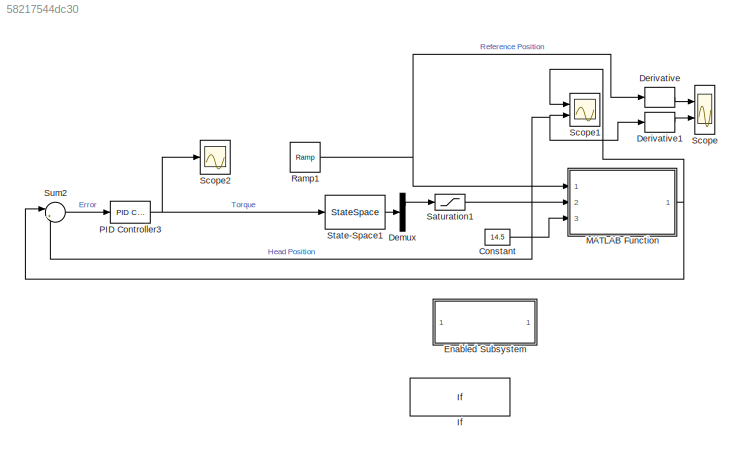
MODEL slx_58217544dc30
KIND model
CONFIG AbsTol = auto
CONFIG EnableMultiTasking = off
CONFIG FixedStep = 0.001
CONFIG MaxStep = auto
CONFIG MinStep = auto
CONFIG RelTol = 1e-3
CONFIG SampleTimeConstraint = Unconstrained
CONFIG Solver = VariableStepAuto
CONFIG SolverName = VariableStepAuto
CONFIG StartTime = 0.0
CONFIG StopTime = 5
BLOCK [Constant] Constant
  Value = 14.5
BLOCK [Demux] Demux
  DisplayOption = bar
  Outputs = 2
  Ports = [1, 2]
BLOCK [Derivative] Derivative
BLOCK [Derivative] Derivative1
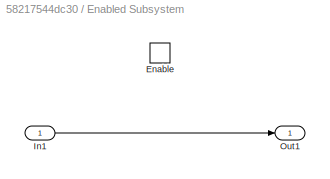
BLOCK [SubSystem] Enabled Subsystem
  Ports = [1, 1, 1]
  RequestExecContextInheritance = off
  TreatAsAtomicUnit = on
BLOCK [EnablePort] Enabled Subsystem/Enable
  Ports = [0, 1]
  ShowOutputPort = on
BLOCK [Inport] Enabled Subsystem/In1
  IconDisplay = Port number
BLOCK [Outport] Enabled Subsystem/Out1
  IconDisplay = Port number
BLOCK [If] If
  Ports = [1, 2]
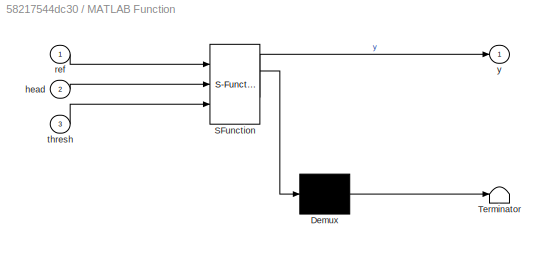
BLOCK [SubSystem] MATLAB Function
  ErrorFcn = Stateflow.Translate.translate
  PermitHierarchicalResolution = ExplicitOnly
  Ports = [3, 1]
  RequestExecContextInheritance = off
  SFBlockType = MATLAB Function
  TreatAsAtomicUnit = on
BLOCK [Demux] MATLAB Function/ Demux 
  Outputs = 1
  Ports = [1, 1]
BLOCK [S-Function] MATLAB Function/ SFunction 
  EnableBusSupport = on
  FunctionName = sf_sfun
  PortCounts = [3 2]
  Ports = [3, 2]
  SFcnIsStateOwnerBlock = off
  SFunctionDeploymentMode = off
  Tag = Stateflow S-Function Hybrid_Head_v2 2
BLOCK [Terminator] MATLAB Function/ Terminator 
BLOCK [Inport] MATLAB Function/head
  IconDisplay = Port number
  Port = 2
BLOCK [Inport] MATLAB Function/ref
  IconDisplay = Port number
BLOCK [Inport] MATLAB Function/thresh
  IconDisplay = Port number
  Port = 3
BLOCK [Outport] MATLAB Function/y
  IconDisplay = Port number
BLOCK [Reference] PID Controller3  REF=simulink/Continuous/PID Controller
  Ports = [1, 1]
  SourceBlock = simulink/Continuous/PID Controller
  SourceProductBaseCode = SL
  SourceProductName = Simulink
  SourceType = PID 1dof
BLOCK [Reference] Ramp1  REF=simulink/Sources/Ramp
  Ports = [0, 1]
  SourceBlock = simulink/Sources/Ramp
  SourceProductBaseCode = SL
  SourceProductName = Simulink
  SourceType = Ramp
BLOCK [Saturate] Saturation1
  InputPortMap = u0
  LowerLimit = -15
  Ports = [1, 1]
  UpperLimit = 15
BLOCK [Scope] Scope
  Floating = off
  NumInputPorts = 2
  Ports = [2]
  ScopeSpecificationString = Simulink.scopes.TimeScopeBlockCfg('CurrentConfiguration', extmgr.ConfigurationSet(extmgr.Configuration('Core','General UI',true),extmgr.Configuration('Core','Source UI',true),extmgr.Configuration('Sources','WiredSimulink',true,'DataLoggingVariableName','ScopeData2'),extmgr.Configuration('Visuals','Time Domain',true,'SerializedDisplays',{struct('MinYLimReal','-12.94641','MaxYLimReal','28.45543','YL...<+1742ch>
BLOCK [Scope] Scope1
  Floating = off
  NumInputPorts = 2
  Ports = [2]
  ScopeSpecificationString = Simulink.scopes.TimeScopeBlockCfg('CurrentConfiguration', extmgr.ConfigurationSet(extmgr.Configuration('Core','General UI',true),extmgr.Configuration('Core','Source UI',true),extmgr.Configuration('Sources','WiredSimulink',true),extmgr.Configuration('Visuals','Time Domain',true,'SerializedDisplays',{struct('MinYLimReal','-7.75082','MaxYLimReal','19.75099','YLabelReal','Position (deg)','MinYLimMag',...<+1723ch>
BLOCK [Scope] Scope2
  Floating = off
  NumInputPorts = 1
  Ports = [1]
  ScopeSpecificationString = Simulink.scopes.TimeScopeBlockCfg('CurrentConfiguration', extmgr.ConfigurationSet(extmgr.Configuration('Core','General UI',true),extmgr.Configuration('Core','Source UI',true),extmgr.Configuration('Sources','WiredSimulink',true,'DataLoggingVariableName','ScopeData1'),extmgr.Configuration('Visuals','Time Domain',true,'SerializedDisplays',{struct('MinYLimReal','-76081.01949','MaxYLimReal','31289.9378...<+1771ch>
BLOCK [StateSpace] State-Space1
  A = [0 1; -1 -1]
  B = [0; 1]
  C = [1 0;0 0]
  D = [0 ; 0]
  InitialCondition = -5
  Ports = [1, 1]
BLOCK [Sum] Sum2
  IconShape = round
  InputSameDT = off
  Inputs = |+-
  OutDataTypeStr = Inherit: Inherit via internal rule
  Ports = [2, 1]
  SaturateOnIntegerOverflow = off
LINE Constant:1 -> MATLAB Function:3
LINE Demux:1 -> Saturation1:1
LINE Derivative1:1 -> Scope:2
LINE Derivative:1 -> Scope:1
LINE Enabled Subsystem/In1:1 -> Enabled Subsystem/Out1:1
NET MATLAB Function:1 -> Scope1:1, Sum2:1
NET PID Controller3:1 -> Scope2:1, State-Space1:1
NET Ramp1:1 -> Derivative:1, MATLAB Function:1
NET Saturation1:1 -> Derivative1:1, MATLAB Function:2, Scope1:2, Sum2:2
LINE State-Space1:1 -> Demux:1
LINE Sum2:1 -> PID Controller3:1
note: NET lines group one-source signal fan-out (src -> all destinations, sorted); 1:1 wires keep LINE
CHART MATLAB Function states=1 transitions=1
  STATE_LABEL 'eML_blk_kernel()'
  STATE_LABEL 'SCRIPT:\nfunction y = fcn(ref,head,thresh)\nHEAD(\nif (head > thresh)\n    y = 1;\nelse\n    y = ref;\nend\n    \nend\n'
